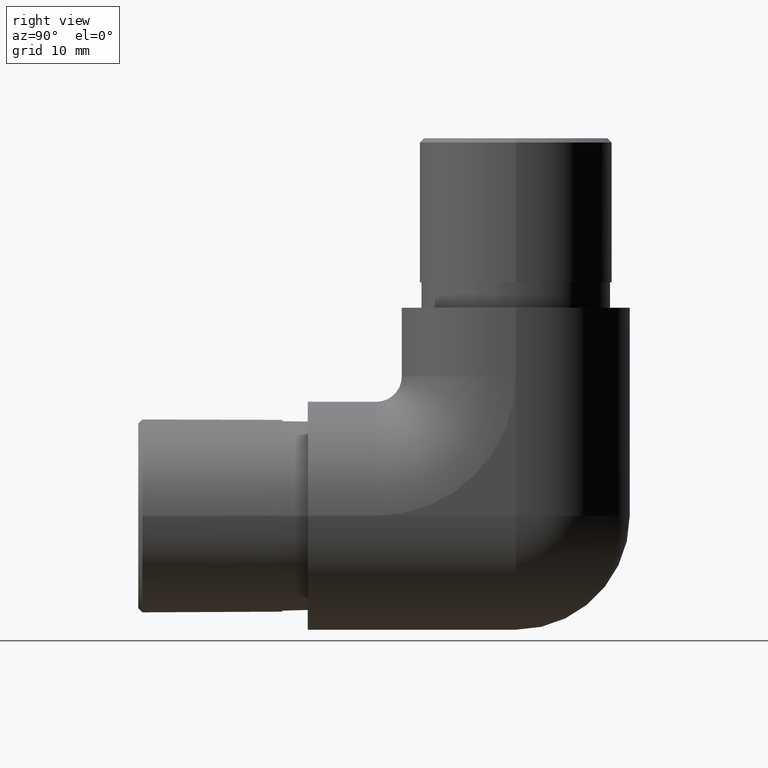
[diagram: clean part render]
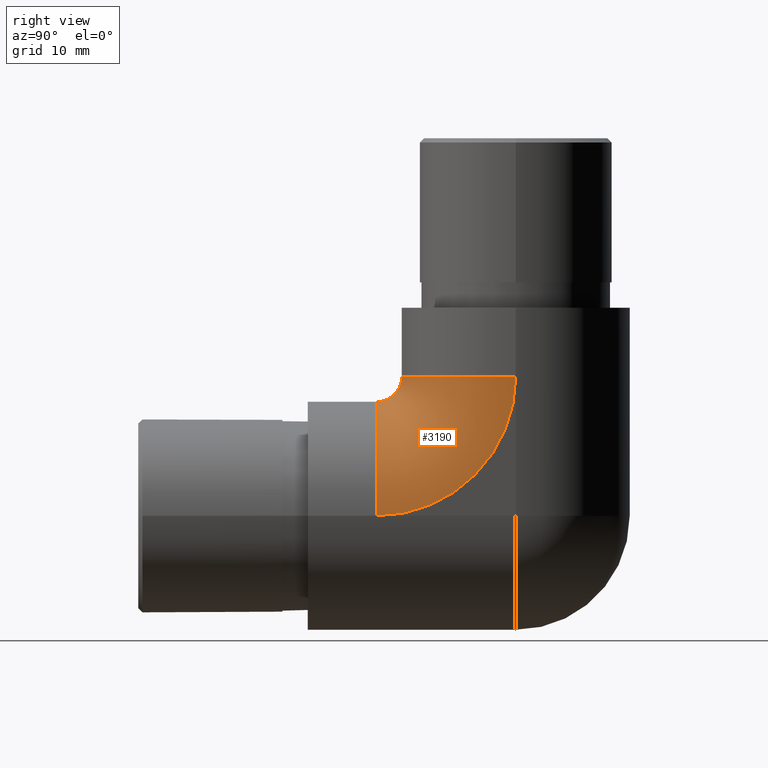
[diagram: same view with one face highlighted and labeled with its STEP entity id]
A machine part, right view. The second image highlights one B-rep face of the part: STEP entity #3190.
In plain terms, the highlighted toroidal blend (fillet) surface has major radius 16.45 mm and minor (blend) radius 13.45 mm.
Its self-contained STEP definition (entity closure, byte-faithful):
#154 = CARTESIAN_POINT ( 'NONE',  ( 13.44999999999999900, 8.099999999999999600, -3.469446951953614200E-015 ) ) ;
#304 = DIRECTION ( 'NONE',  ( -1.054543146490460300E-016, 0.0000000000000000000, -1.000000000000000000 ) ) ;
#365 = DIRECTION ( 'NONE',  ( -6.448786156047613200E-017, 0.0000000000000000000, -1.000000000000000000 ) ) ;
#405 = CARTESIAN_POINT ( 'NONE',  ( 0.0000000000000000000, 8.099999999999999600, 16.44999999999999900 ) ) ;
#417 = CARTESIAN_POINT ( 'NONE',  ( 0.0000000000000000000, 8.099999999999999600, 1.734723475976807100E-015 ) ) ;
#533 = VERTEX_POINT ( 'NONE', #2384 ) ;
#748 = AXIS2_PLACEMENT_3D ( 'NONE', #405, #7140, #8057 ) ;
#1226 = DIRECTION ( 'NONE',  ( -1.000000000000000000, -0.0000000000000000000, 6.448786156047610700E-017 ) ) ;
#1420 = CARTESIAN_POINT ( 'NONE',  ( 1.734723475976807100E-015, 8.099999999999999600, 16.44999999999999900 ) ) ;
#1588 = AXIS2_PLACEMENT_3D ( 'NONE', #6457, #2595, #11245 ) ;
#1868 = ORIENTED_EDGE ( 'NONE', *, *, #10395, .F. ) ;
#1876 = CIRCLE ( 'NONE', #11831, 13.44999999999999900 ) ;
#2205 = CIRCLE ( 'NONE', #1588, 13.44999999999999900 ) ;
#2384 = CARTESIAN_POINT ( 'NONE',  ( -8.673617379884035500E-016, 8.099999999999999600, 13.44999999999999900 ) ) ;
#2595 = DIRECTION ( 'NONE',  ( 0.0000000000000000000, 0.0000000000000000000, -1.000000000000000000 ) ) ;
#2819 = ORIENTED_EDGE ( 'NONE', *, *, #7829, .T. ) ;
#3044 = AXIS2_PLACEMENT_3D ( 'NONE', #9944, #1226, #304 ) ;
#3095 = VERTEX_POINT ( 'NONE', #154 ) ;
#3190 = ADVANCED_FACE ( 'NONE', ( #12433 ), #6192, .T. ) ;
#3821 = VERTEX_POINT ( 'NONE', #9513 ) ;
#5092 = DIRECTION ( 'NONE',  ( 0.0000000000000000000, 0.0000000000000000000, -1.000000000000000000 ) ) ;
#5170 = CIRCLE ( 'NONE', #3044, 16.44999999999999900 ) ;
#5393 = CIRCLE ( 'NONE', #6093, 2.999999999999999100 ) ;
#6093 = AXIS2_PLACEMENT_3D ( 'NONE', #1420, #10142, #365 ) ;
#6192 = TOROIDAL_SURFACE ( 'NONE', #748, 16.44999999999999900, 13.44999999999999900 ) ;
#6242 = CARTESIAN_POINT ( 'NONE',  ( 13.44999999999999900, 24.54999999999999700, 16.44999999999999900 ) ) ;
#6457 = CARTESIAN_POINT ( 'NONE',  ( 0.0000000000000000000, 24.54999999999999700, 16.44999999999999900 ) ) ;
#7140 = DIRECTION ( 'NONE',  ( 1.000000000000000000, 0.0000000000000000000, -6.448786156047610700E-017 ) ) ;
#7405 = EDGE_CURVE ( 'NONE', #3821, #533, #5393, .T. ) ;
#7829 = EDGE_CURVE ( 'NONE', #11424, #3821, #2205, .T. ) ;
#8057 = DIRECTION ( 'NONE',  ( -6.448786156047610700E-017, 0.0000000000000000000, -1.000000000000000000 ) ) ;
#8214 = ORIENTED_EDGE ( 'NONE', *, *, #11257, .F. ) ;
#8837 = EDGE_LOOP ( 'NONE', ( #2819, #10181, #1868, #8214 ) ) ;
#9513 = CARTESIAN_POINT ( 'NONE',  ( 0.0000000000000000000, 11.09999999999999800, 16.44999999999999900 ) ) ;
#9944 = CARTESIAN_POINT ( 'NONE',  ( 13.44999999999999900, 8.099999999999999600, 16.44999999999999900 ) ) ;
#10142 = DIRECTION ( 'NONE',  ( -1.000000000000000000, -0.0000000000000000000, 6.448786156047610700E-017 ) ) ;
#10181 = ORIENTED_EDGE ( 'NONE', *, *, #7405, .T. ) ;
#10395 = EDGE_CURVE ( 'NONE', #3095, #533, #1876, .T. ) ;
#11027 = DIRECTION ( 'NONE',  ( 0.0000000000000000000, -1.000000000000000000, 0.0000000000000000000 ) ) ;
#11245 = DIRECTION ( 'NONE',  ( -1.000000000000000000, 0.0000000000000000000, 0.0000000000000000000 ) ) ;
#11257 = EDGE_CURVE ( 'NONE', #11424, #3095, #5170, .T. ) ;
#11424 = VERTEX_POINT ( 'NONE', #6242 ) ;
#11831 = AXIS2_PLACEMENT_3D ( 'NONE', #417, #11027, #5092 ) ;
#12433 = FACE_OUTER_BOUND ( 'NONE', #8837, .T. ) ;